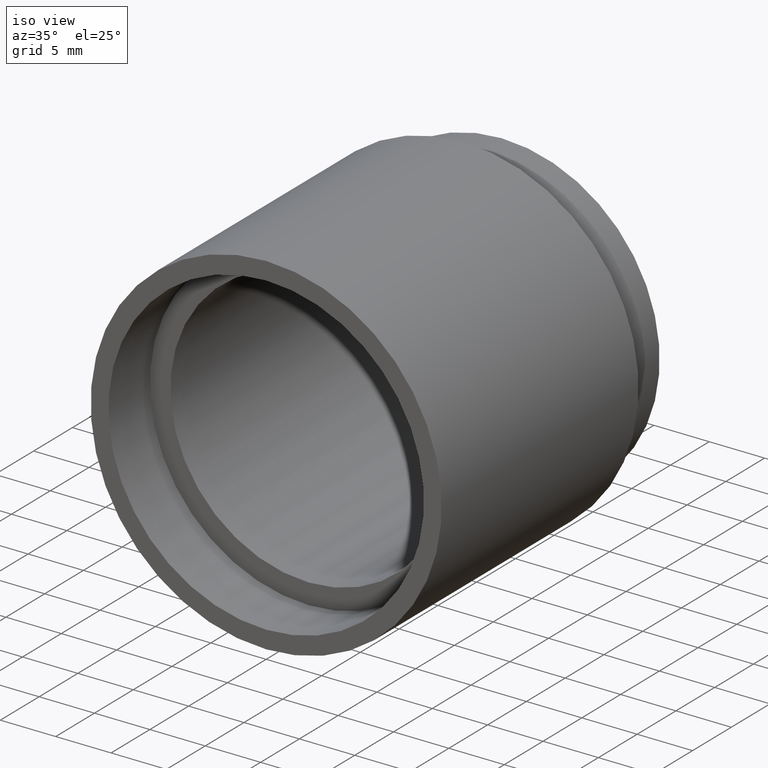
[diagram: clean part render]
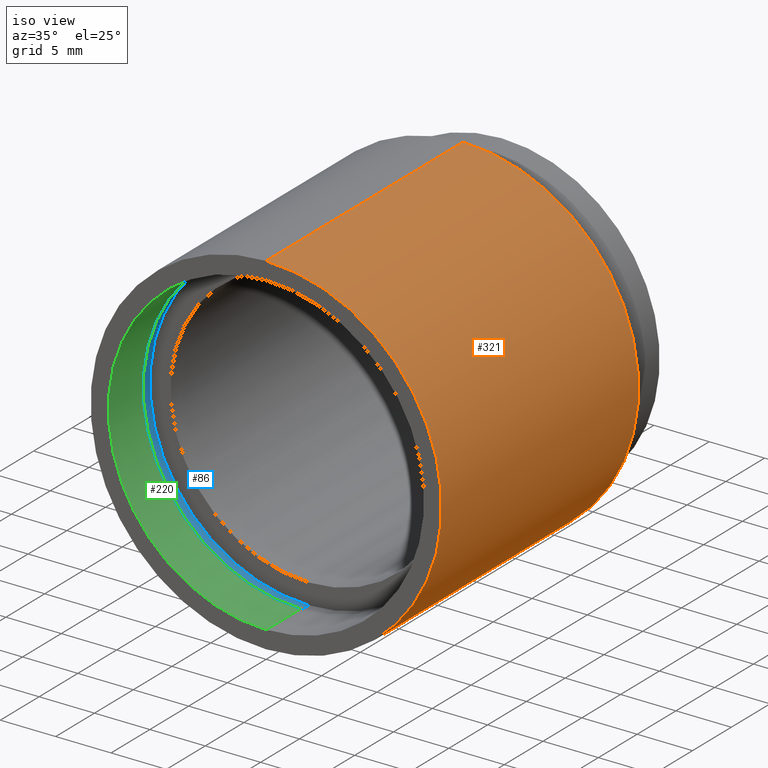
[diagram: same view with three faces highlighted in distinct colors, each labeled with its STEP entity id]
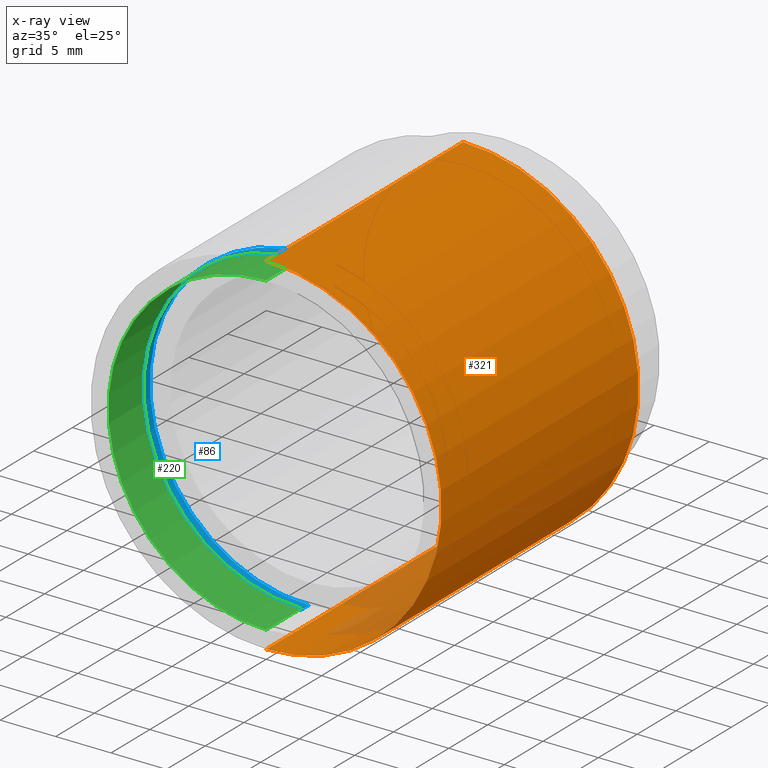
[diagram: x-ray of the same camera — body ghosted, the three highlighted faces saturated]
A machine part, iso view with three faces highlighted in distinct colors.
The next image is the same camera in x-ray (body ghosted, the three faces saturated) — at least one of them is partly hidden behind the body in this view.
Their STEP definitions:

[orange] entity #321 — the highlighted cylindrical surface (partial cylindrical patch) has radius 15.85 mm, axis along (-0, 1, -0).
#11 = ORIENTED_EDGE ( 'NONE', *, *, #190, .F. ) ;
#19 = VERTEX_POINT ( 'NONE', #324 ) ;
#24 = AXIS2_PLACEMENT_3D ( 'NONE', #102, #454, #594 ) ;
#28 = VERTEX_POINT ( 'NONE', #281 ) ;
#29 = EDGE_CURVE ( 'NONE', #268, #328, #33, .T. ) ;
#33 = CIRCLE ( 'NONE', #89, 15.85000000000002100 ) ;
#89 = AXIS2_PLACEMENT_3D ( 'NONE', #189, #288, #534 ) ;
#98 = CIRCLE ( 'NONE', #24, 15.85000000000002100 ) ;
#102 = CARTESIAN_POINT ( 'NONE',  ( 0.0000000000000000000, -2.775557561562891400E-014, 0.0000000000000000000 ) ) ;
#189 = CARTESIAN_POINT ( 'NONE',  ( 0.0000000000000000000, 25.39999999999997700, 0.0000000000000000000 ) ) ;
#190 = EDGE_CURVE ( 'NONE', #28, #268, #285, .T. ) ;
#192 = CARTESIAN_POINT ( 'NONE',  ( 0.0000000000000000000, 25.39999999999997700, 15.85000000000002100 ) ) ;
#196 = EDGE_LOOP ( 'NONE', ( #222, #295, #428, #11 ) ) ;
#201 = DIRECTION ( 'NONE',  ( -0.0000000000000000000, 1.000000000000000000, -0.0000000000000000000 ) ) ;
#205 = AXIS2_PLACEMENT_3D ( 'NONE', #530, #280, #576 ) ;
#222 = ORIENTED_EDGE ( 'NONE', *, *, #497, .T. ) ;
#268 = VERTEX_POINT ( 'NONE', #192 ) ;
#280 = DIRECTION ( 'NONE',  ( -0.0000000000000000000, 1.000000000000000000, -0.0000000000000000000 ) ) ;
#281 = CARTESIAN_POINT ( 'NONE',  ( 0.0000000000000000000, -2.775557561562891400E-014, 15.85000000000002100 ) ) ;
#285 = LINE ( 'NONE', #609, #449 ) ;
#288 = DIRECTION ( 'NONE',  ( -0.0000000000000000000, 1.000000000000000000, -0.0000000000000000000 ) ) ;
#291 = CARTESIAN_POINT ( 'NONE',  ( 1.941065176648557100E-015, 161.3761669434274500, -15.85000000000002100 ) ) ;
#295 = ORIENTED_EDGE ( 'NONE', *, *, #453, .T. ) ;
#321 = ADVANCED_FACE ( 'NONE', ( #549 ), #584, .T. ) ;
#324 = CARTESIAN_POINT ( 'NONE',  ( 1.941065176648557100E-015, -2.775557561562891400E-014, -15.85000000000002100 ) ) ;
#328 = VERTEX_POINT ( 'NONE', #532 ) ;
#428 = ORIENTED_EDGE ( 'NONE', *, *, #29, .F. ) ;
#449 = VECTOR ( 'NONE', #613, 1000.000000000000000 ) ;
#453 = EDGE_CURVE ( 'NONE', #19, #328, #500, .T. ) ;
#454 = DIRECTION ( 'NONE',  ( -0.0000000000000000000, 1.000000000000000000, -0.0000000000000000000 ) ) ;
#482 = VECTOR ( 'NONE', #201, 1000.000000000000000 ) ;
#497 = EDGE_CURVE ( 'NONE', #28, #19, #98, .T. ) ;
#500 = LINE ( 'NONE', #291, #482 ) ;
#530 = CARTESIAN_POINT ( 'NONE',  ( 0.0000000000000000000, 161.3761669434274500, 0.0000000000000000000 ) ) ;
#532 = CARTESIAN_POINT ( 'NONE',  ( 1.941065176648557100E-015, 25.39999999999997700, -15.85000000000002100 ) ) ;
#534 = DIRECTION ( 'NONE',  ( 0.0000000000000000000, 0.0000000000000000000, 1.000000000000000000 ) ) ;
#549 = FACE_OUTER_BOUND ( 'NONE', #196, .T. ) ;
#576 = DIRECTION ( 'NONE',  ( 0.0000000000000000000, 0.0000000000000000000, 1.000000000000000000 ) ) ;
#584 = CYLINDRICAL_SURFACE ( 'NONE', #205, 15.85000000000002100 ) ;
#594 = DIRECTION ( 'NONE',  ( 0.0000000000000000000, 0.0000000000000000000, 1.000000000000000000 ) ) ;
#609 = CARTESIAN_POINT ( 'NONE',  ( 0.0000000000000000000, 161.3761669434274500, 15.85000000000002100 ) ) ;
#613 = DIRECTION ( 'NONE',  ( -0.0000000000000000000, 1.000000000000000000, -0.0000000000000000000 ) ) ;

[blue] entity #86 — the highlighted cylindrical surface (partial cylindrical patch) has radius 14.35 mm, axis along (-0, 1, -0).
#59 = VECTOR ( 'NONE', #519, 1000.000000000000000 ) ;
#71 = LINE ( 'NONE', #470, #59 ) ;
#86 = ADVANCED_FACE ( 'NONE', ( #120 ), #248, .F. ) ;
#116 = CIRCLE ( 'NONE', #258, 14.35000000000001900 ) ;
#120 = FACE_OUTER_BOUND ( 'NONE', #367, .T. ) ;
#131 = EDGE_CURVE ( 'NONE', #422, #619, #116, .T. ) ;
#141 = DIRECTION ( 'NONE',  ( 0.0000000000000000000, 0.0000000000000000000, 1.000000000000000000 ) ) ;
#143 = LINE ( 'NONE', #447, #553 ) ;
#160 = EDGE_CURVE ( 'NONE', #422, #265, #71, .T. ) ;
#240 = DIRECTION ( 'NONE',  ( 0.0000000000000000000, 0.0000000000000000000, 1.000000000000000000 ) ) ;
#241 = VERTEX_POINT ( 'NONE', #620 ) ;
#248 = CYLINDRICAL_SURFACE ( 'NONE', #303, 14.35000000000001900 ) ;
#258 = AXIS2_PLACEMENT_3D ( 'NONE', #465, #325, #365 ) ;
#259 = DIRECTION ( 'NONE',  ( -0.0000000000000000000, 1.000000000000000000, -0.0000000000000000000 ) ) ;
#265 = VERTEX_POINT ( 'NONE', #374 ) ;
#296 = ORIENTED_EDGE ( 'NONE', *, *, #131, .F. ) ;
#303 = AXIS2_PLACEMENT_3D ( 'NONE', #381, #539, #240 ) ;
#325 = DIRECTION ( 'NONE',  ( -0.0000000000000000000, 1.000000000000000000, -0.0000000000000000000 ) ) ;
#327 = EDGE_CURVE ( 'NONE', #265, #241, #342, .T. ) ;
#342 = CIRCLE ( 'NONE', #433, 14.35000000000001900 ) ;
#344 = CARTESIAN_POINT ( 'NONE',  ( 1.757368156776454300E-015, 4.499999999999976000, -14.35000000000001900 ) ) ;
#365 = DIRECTION ( 'NONE',  ( 0.0000000000000000000, 0.0000000000000000000, 1.000000000000000000 ) ) ;
#367 = EDGE_LOOP ( 'NONE', ( #296, #385, #391, #437 ) ) ;
#374 = CARTESIAN_POINT ( 'NONE',  ( 1.757368156776454300E-015, 5.499999999999976900, -14.35000000000001900 ) ) ;
#381 = CARTESIAN_POINT ( 'NONE',  ( 0.0000000000000000000, 161.3761669434274500, 0.0000000000000000000 ) ) ;
#385 = ORIENTED_EDGE ( 'NONE', *, *, #160, .T. ) ;
#391 = ORIENTED_EDGE ( 'NONE', *, *, #327, .T. ) ;
#399 = CARTESIAN_POINT ( 'NONE',  ( 0.0000000000000000000, 4.499999999999976000, 14.35000000000001900 ) ) ;
#422 = VERTEX_POINT ( 'NONE', #344 ) ;
#432 = CARTESIAN_POINT ( 'NONE',  ( 0.0000000000000000000, 5.499999999999976900, 0.0000000000000000000 ) ) ;
#433 = AXIS2_PLACEMENT_3D ( 'NONE', #432, #479, #141 ) ;
#437 = ORIENTED_EDGE ( 'NONE', *, *, #603, .F. ) ;
#447 = CARTESIAN_POINT ( 'NONE',  ( 0.0000000000000000000, 161.3761669434274500, 14.35000000000001900 ) ) ;
#465 = CARTESIAN_POINT ( 'NONE',  ( 0.0000000000000000000, 4.499999999999976000, 0.0000000000000000000 ) ) ;
#470 = CARTESIAN_POINT ( 'NONE',  ( 1.757368156776454300E-015, 161.3761669434274500, -14.35000000000001900 ) ) ;
#479 = DIRECTION ( 'NONE',  ( -0.0000000000000000000, 1.000000000000000000, -0.0000000000000000000 ) ) ;
#519 = DIRECTION ( 'NONE',  ( -0.0000000000000000000, 1.000000000000000000, -0.0000000000000000000 ) ) ;
#539 = DIRECTION ( 'NONE',  ( -0.0000000000000000000, 1.000000000000000000, -0.0000000000000000000 ) ) ;
#553 = VECTOR ( 'NONE', #259, 1000.000000000000000 ) ;
#603 = EDGE_CURVE ( 'NONE', #619, #241, #143, .T. ) ;
#619 = VERTEX_POINT ( 'NONE', #399 ) ;
#620 = CARTESIAN_POINT ( 'NONE',  ( 0.0000000000000000000, 5.499999999999976900, 14.35000000000001900 ) ) ;

[green] entity #220 — the highlighted cylindrical surface (partial cylindrical patch) has radius 14.25 mm, axis along (-0, 1, -0).
#22 = EDGE_CURVE ( 'NONE', #592, #516, #286, .T. ) ;
#31 = DIRECTION ( 'NONE',  ( -0.0000000000000000000, 1.000000000000000000, -0.0000000000000000000 ) ) ;
#48 = CIRCLE ( 'NONE', #214, 14.25000000000000000 ) ;
#70 = EDGE_CURVE ( 'NONE', #261, #516, #275, .T. ) ;
#94 = DIRECTION ( 'NONE',  ( 0.0000000000000000000, 0.0000000000000000000, 1.000000000000000000 ) ) ;
#99 = DIRECTION ( 'NONE',  ( 0.0000000000000000000, 0.0000000000000000000, 1.000000000000000000 ) ) ;
#112 = VECTOR ( 'NONE', #386, 1000.000000000000000 ) ;
#126 = LINE ( 'NONE', #509, #565 ) ;
#135 = CARTESIAN_POINT ( 'NONE',  ( 0.0000000000000000000, 4.500000000000032000, 0.0000000000000000000 ) ) ;
#153 = CYLINDRICAL_SURFACE ( 'NONE', #390, 14.25000000000000000 ) ;
#184 = DIRECTION ( 'NONE',  ( -0.0000000000000000000, 1.000000000000000000, -0.0000000000000000000 ) ) ;
#207 = FACE_OUTER_BOUND ( 'NONE', #562, .T. ) ;
#214 = AXIS2_PLACEMENT_3D ( 'NONE', #380, #184, #99 ) ;
#220 = ADVANCED_FACE ( 'NONE', ( #207 ), #153, .F. ) ;
#230 = ORIENTED_EDGE ( 'NONE', *, *, #272, .F. ) ;
#236 = CARTESIAN_POINT ( 'NONE',  ( 0.0000000000000000000, 161.3761669434274500, 14.25000000000000000 ) ) ;
#261 = VERTEX_POINT ( 'NONE', #622 ) ;
#262 = DIRECTION ( 'NONE',  ( -0.0000000000000000000, 1.000000000000000000, -0.0000000000000000000 ) ) ;
#272 = EDGE_CURVE ( 'NONE', #485, #261, #48, .T. ) ;
#275 = LINE ( 'NONE', #236, #112 ) ;
#286 = CIRCLE ( 'NONE', #587, 14.25000000000000000 ) ;
#301 = ORIENTED_EDGE ( 'NONE', *, *, #70, .F. ) ;
#315 = CARTESIAN_POINT ( 'NONE',  ( 0.0000000000000000000, 161.3761669434274500, 0.0000000000000000000 ) ) ;
#338 = CARTESIAN_POINT ( 'NONE',  ( 1.745121688784978200E-015, 2.775557561562891400E-014, -14.25000000000000000 ) ) ;
#376 = DIRECTION ( 'NONE',  ( -0.0000000000000000000, 1.000000000000000000, -0.0000000000000000000 ) ) ;
#380 = CARTESIAN_POINT ( 'NONE',  ( 0.0000000000000000000, 2.775557561562891400E-014, 0.0000000000000000000 ) ) ;
#386 = DIRECTION ( 'NONE',  ( -0.0000000000000000000, 1.000000000000000000, -0.0000000000000000000 ) ) ;
#389 = CARTESIAN_POINT ( 'NONE',  ( 0.0000000000000000000, 4.500000000000032000, 14.25000000000000000 ) ) ;
#390 = AXIS2_PLACEMENT_3D ( 'NONE', #315, #31, #94 ) ;
#407 = ORIENTED_EDGE ( 'NONE', *, *, #22, .T. ) ;
#475 = DIRECTION ( 'NONE',  ( 0.0000000000000000000, 0.0000000000000000000, 1.000000000000000000 ) ) ;
#485 = VERTEX_POINT ( 'NONE', #338 ) ;
#505 = CARTESIAN_POINT ( 'NONE',  ( 1.745121688784978200E-015, 4.500000000000032000, -14.25000000000000000 ) ) ;
#509 = CARTESIAN_POINT ( 'NONE',  ( 1.745121688784978200E-015, 161.3761669434274500, -14.25000000000000000 ) ) ;
#516 = VERTEX_POINT ( 'NONE', #389 ) ;
#547 = ORIENTED_EDGE ( 'NONE', *, *, #617, .T. ) ;
#562 = EDGE_LOOP ( 'NONE', ( #230, #547, #407, #301 ) ) ;
#565 = VECTOR ( 'NONE', #262, 1000.000000000000000 ) ;
#587 = AXIS2_PLACEMENT_3D ( 'NONE', #135, #376, #475 ) ;
#592 = VERTEX_POINT ( 'NONE', #505 ) ;
#617 = EDGE_CURVE ( 'NONE', #485, #592, #126, .T. ) ;
#622 = CARTESIAN_POINT ( 'NONE',  ( 0.0000000000000000000, 2.775557561562891400E-014, 14.25000000000000000 ) ) ;